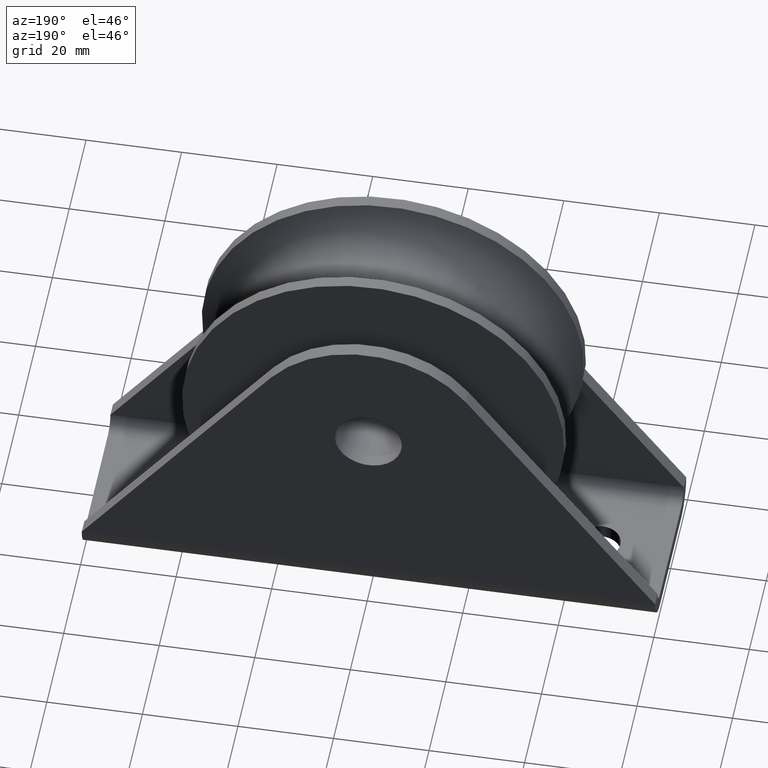
[diagram: clean part render]
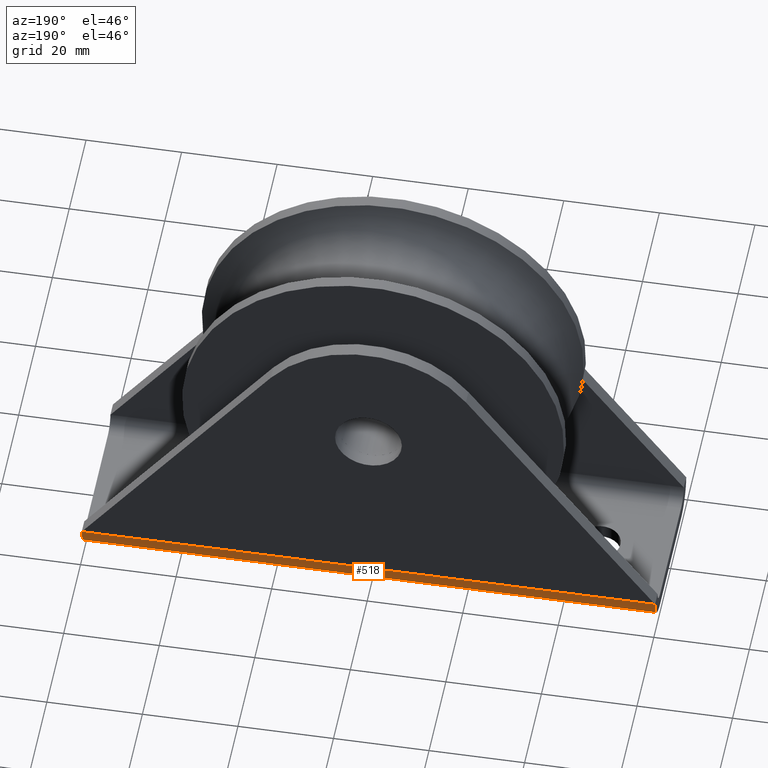
[diagram: same view with one face highlighted and labeled with its STEP entity id]
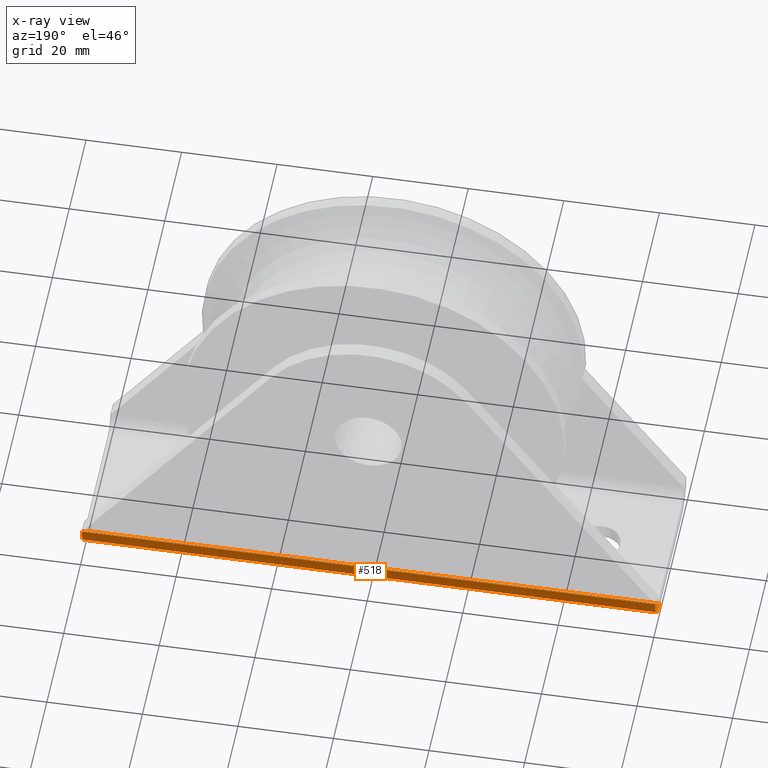
[diagram: x-ray of the same camera — body ghosted, the highlighted face saturated]
A machine part, auxiliary view. The second image highlights one B-rep face of the part: STEP entity #518.
The next image is the same camera in x-ray: the body ghosted, the highlighted face saturated — about 0% of this face is hidden behind the body in this view.
In plain terms, the highlighted cylindrical surface (edge-blend (fillet) strip) has radius 6 mm, axis along (1, 0, 0).
Its self-contained STEP definition (entity closure, byte-faithful):
#51=LINE('',#870,#83);
#52=LINE('',#874,#84);
#83=VECTOR('',#703,120.);
#84=VECTOR('',#706,120.);
#151=FACE_OUTER_BOUND('',#194,.T.);
#194=EDGE_LOOP('',(#425,#426,#427,#428));
#244=CIRCLE('',#574,6.);
#245=CIRCLE('',#575,6.);
#263=VERTEX_POINT('',#797);
#269=VERTEX_POINT('',#810);
#286=VERTEX_POINT('',#871);
#287=VERTEX_POINT('',#873);
#339=EDGE_CURVE('',#263,#269,#51,.T.);
#340=EDGE_CURVE('',#286,#263,#244,.T.);
#341=EDGE_CURVE('',#287,#286,#52,.T.);
#342=EDGE_CURVE('',#269,#287,#245,.T.);
#425=ORIENTED_EDGE('',*,*,#339,.F.);
#426=ORIENTED_EDGE('',*,*,#340,.F.);
#427=ORIENTED_EDGE('',*,*,#341,.F.);
#428=ORIENTED_EDGE('',*,*,#342,.F.);
#494=CYLINDRICAL_SURFACE('',#573,6.);
#518=ADVANCED_FACE('',(#151),#494,.T.);
#573=AXIS2_PLACEMENT_3D('',#869,#701,#702);
#574=AXIS2_PLACEMENT_3D('',#872,#704,#705);
#575=AXIS2_PLACEMENT_3D('',#875,#707,#708);
#701=DIRECTION('center_axis',(1.,0.,0.));
#702=DIRECTION('ref_axis',(0.,0.,-1.));
#703=DIRECTION('',(-1.,-4.50683757946983E-35,2.75964210798737E-51));
#704=DIRECTION('center_axis',(1.,0.,0.));
#705=DIRECTION('ref_axis',(0.,0.,-1.));
#706=DIRECTION('',(1.,0.,0.));
#707=DIRECTION('center_axis',(-1.,0.,0.));
#708=DIRECTION('ref_axis',(0.,1.,0.));
#797=CARTESIAN_POINT('',(60.,18.5,6.));
#810=CARTESIAN_POINT('',(-60.,18.5,6.));
#869=CARTESIAN_POINT('Origin',(0.,12.5,6.));
#870=CARTESIAN_POINT('',(-3.78574356675466E-35,18.5,6.));
#871=CARTESIAN_POINT('',(60.,12.5,-5.55111512312578E-16));
#872=CARTESIAN_POINT('Origin',(60.,12.5,6.));
#873=CARTESIAN_POINT('',(-60.,12.5,-5.55111512312578E-16));
#874=CARTESIAN_POINT('',(-30.,12.5,0.));
#875=CARTESIAN_POINT('Origin',(-60.,12.5,6.));